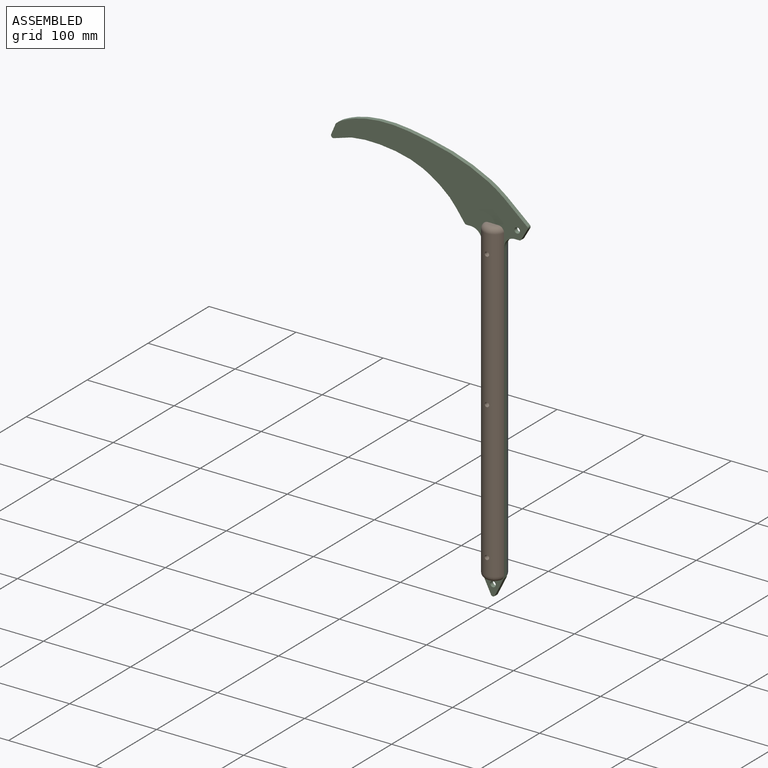
[diagram: assembled view]
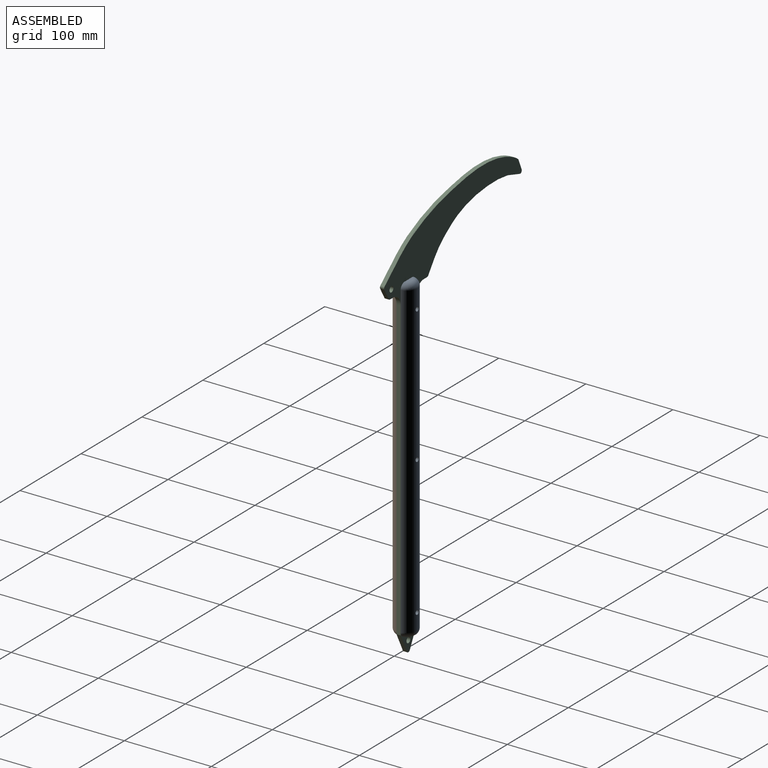
[diagram: assembled view, second angle]
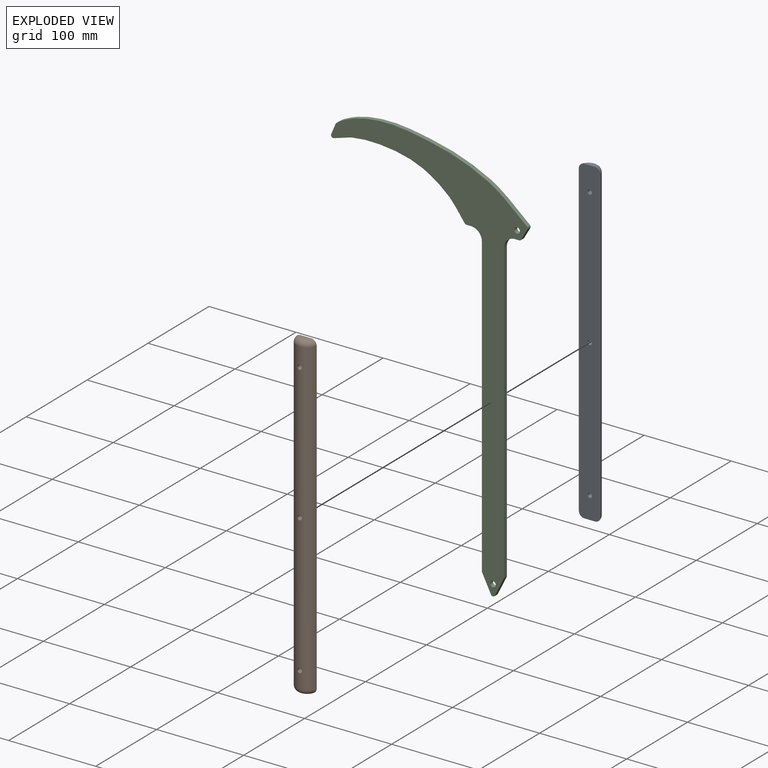
[diagram: exploded view]
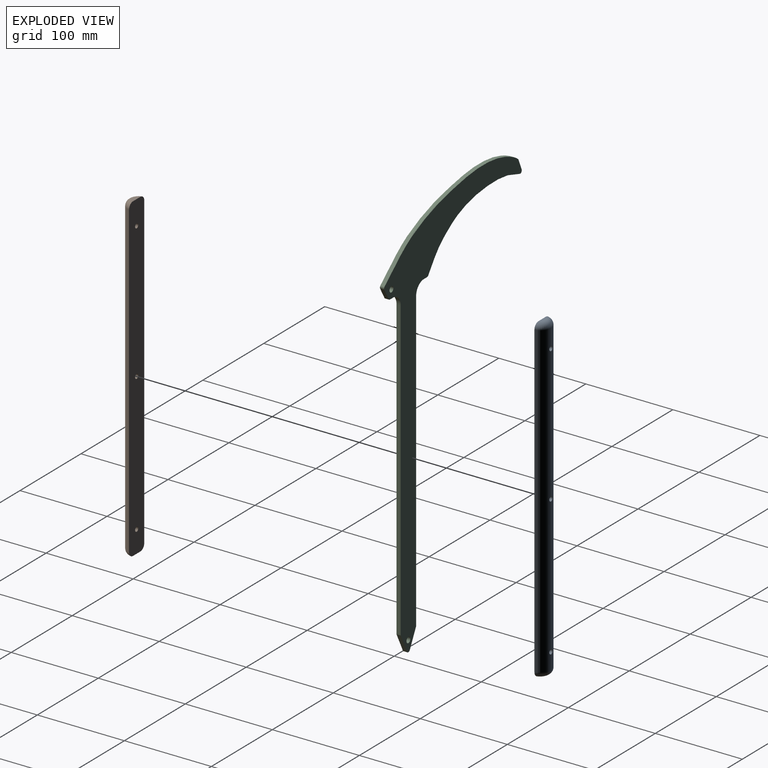
[diagram: exploded view, second angle]
ASSEMBLY  parts=3 mates=2
PART A: 9 faces, bbox 27x13.4x368.3 mm
  f0: plane 368.3x24.99mm, normal (0,1,0), area 9105.9mm2, adj f1,f2,f3,f4,f5,f6,f7,f8
  f1: cylinder r=12.7mm len=355.6mm, axis (0,0,-1), area 12492.1mm2, adj f0,f4,f5,f6,f7,f8
  f2: plane 11.85x4.06mm, normal (0,0,1), area 34.9mm2, adj f0,f5
  f3: plane 11.85x4.06mm, normal (0,0,-1), area 34.9mm2, adj f0,f4
  f4: torus R=6.35mm, axis (0,0,1), area 279.6mm2, adj f0,f1,f3
  f5: torus R=6.35mm, axis (0,0,1), area 279.6mm2, adj f0,f1,f2
  f6: cylinder r=2.54mm len=10.41mm, axis (0,1,0), area 164.2mm2, adj f0,f1
  f7: cylinder r=2.54mm len=10.41mm, axis (0,1,0), area 164.2mm2, adj f0,f1
  f8: cylinder r=2.54mm len=10.41mm, axis (0,1,0), area 164.2mm2, adj f0,f1
PART B: same geometry as A
PART C: 24 faces, bbox 226.7x4.8x460.9 mm
  f0: plane 12.01x5.1mm, normal (-0.92,0,0.39), area 62.2mm2, adj f9,f10,f22,f23
  f1: plane 19.72x6.03mm, normal (0.29,0,-0.96), area 98.2mm2, adj f9,f10,f18,f23
  f2: extruded ~130.26x56.15mm, area 715.3mm2, adj f9,f10,f18,f19
  f3: plane 5.07x4.76mm, normal (0,0,-1), area 24.1mm2, adj f9,f10,f11,f19
  f4: plane 342.9x4.76mm, normal (-1,0,0), area 1633.1mm2, adj f9,f10,f11,f13
  f5: plane 342.9x4.76mm, normal (1,0,0), area 1633.1mm2, adj f9,f10,f12,f14
  f6: plane 4.88x4.76mm, normal (0,0,-1), area 23.3mm2, adj f9,f10,f12,f20
  f7: plane 12.33x7.12mm, normal (0.87,0,-0.5), area 67.8mm2, adj f9,f10,f20,f21
  f8: extruded ~219.17x64.55mm, area 1138.5mm2, adj f9,f10,f21,f22
  f9: plane 460.94x226.67mm, normal (0,-1,0), area 16990.5mm2, adj f0,f1,f2,f3,f4,f5,f6,f7
  f10: plane 460.94x226.67mm, normal (0,1,0), area 16990.5mm2, adj f0,f1,f2,f3,f4,f5,f6,f7
  f11: cylinder r=12.7mm len=12.7mm, axis (0,1,0), area 95mm2, adj f3,f4,f9,f10
  f12: cylinder r=12.7mm len=12.7mm, axis (0,-1,0), area 95mm2, adj f5,f6,f9,f10
  f13: plane 20.86x10.43mm, normal (-0.89,0,-0.45), area 111.1mm2, adj f4,f9,f10,f17
  f14: plane 20.86x10.43mm, normal (0.89,0,-0.45), area 111.1mm2, adj f5,f9,f10,f17
  f15: cylinder r=3.17mm len=6.35mm, axis (0,-1,0), area 95mm2, adj f9,f10
  f16: cylinder r=3.17mm len=6.35mm, axis (0,-1,0), area 95mm2, adj f9,f10
  f17: cylinder r=2.54mm len=4.76mm, axis (0,1,0), area 26.8mm2, adj f9,f10,f13,f14
  f18: cylinder r=2.54mm len=4.76mm, axis (0,1,0), area 1.3mm2, adj f1,f2,f9,f10
  f19: cylinder r=2.54mm len=4.76mm, axis (0,1,0), area 11.3mm2, adj f2,f3,f9,f10
  f20: cylinder r=2.54mm len=4.76mm, axis (0,-1,0), area 12.7mm2, adj f6,f7,f9,f10
  f21: cylinder r=2.54mm len=4.76mm, axis (0,1,0), area 16.6mm2, adj f7,f8,f9,f10
  f22: cylinder r=2.54mm len=4.76mm, axis (0,1,0), area 5.3mm2, adj f0,f8,f9,f10
  f23: cylinder r=2.54mm len=4.76mm, axis (0,1,0), area 27.4mm2, adj f0,f1,f9,f10
PLACE A rot(axis=(0,0,1),180deg) t=(-0.97,-86.77,-277.53)mm
PLACE B t=(-0.97,-86.96,-277.53)mm
PLACE C t=(-1.18,-84.48,81.74)mm
MATE fastened A.f0 <-> C.f10  axis (0,-1,0) through (11.52,-84.48,-271.18)mm
MATE fastened B.f0 <-> C.f9  axis (0,1,0) through (11.52,-89.25,-271.18)mm
